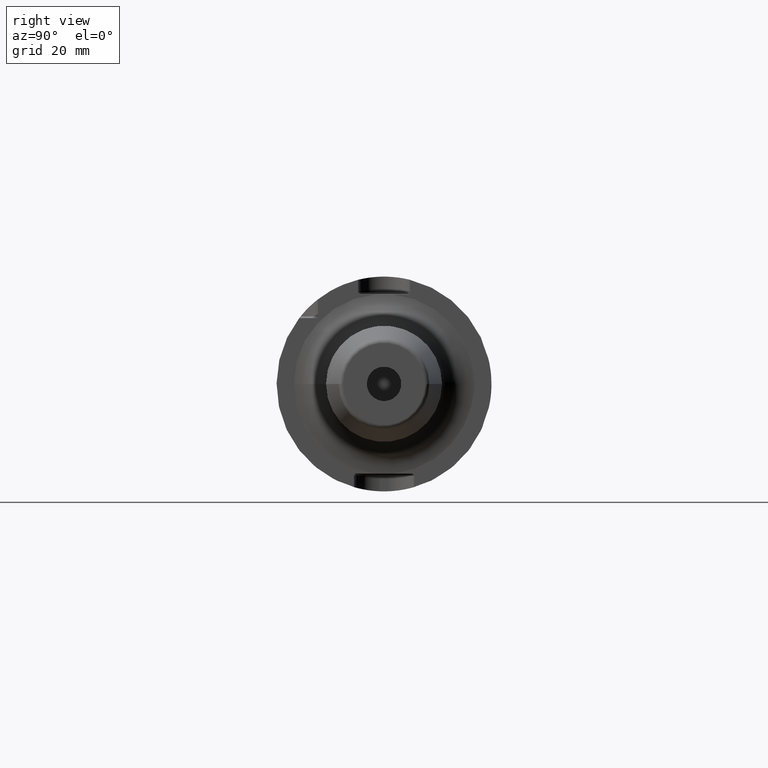
[diagram: clean part render]
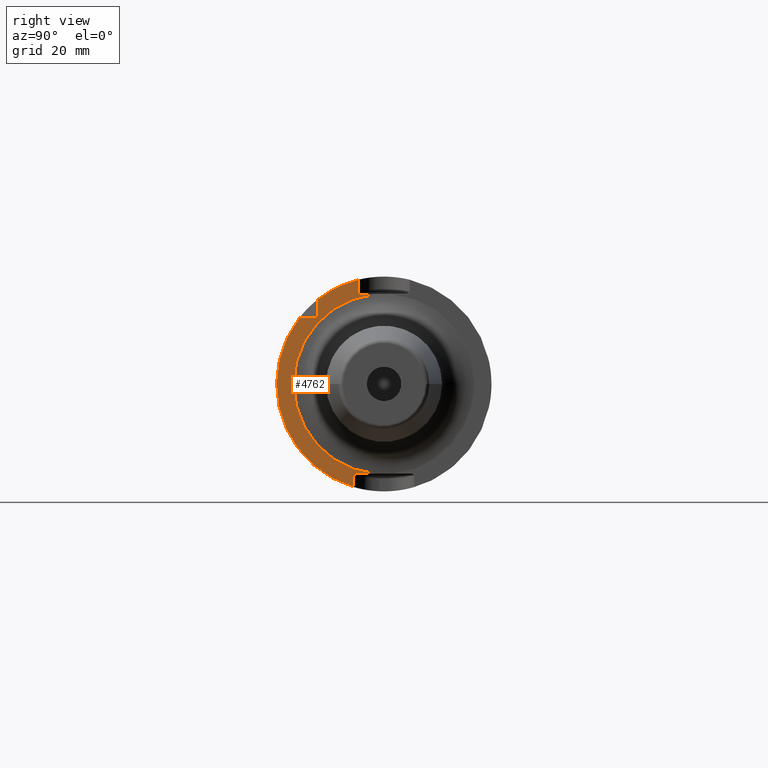
[diagram: same view with one face highlighted and labeled with its STEP entity id]
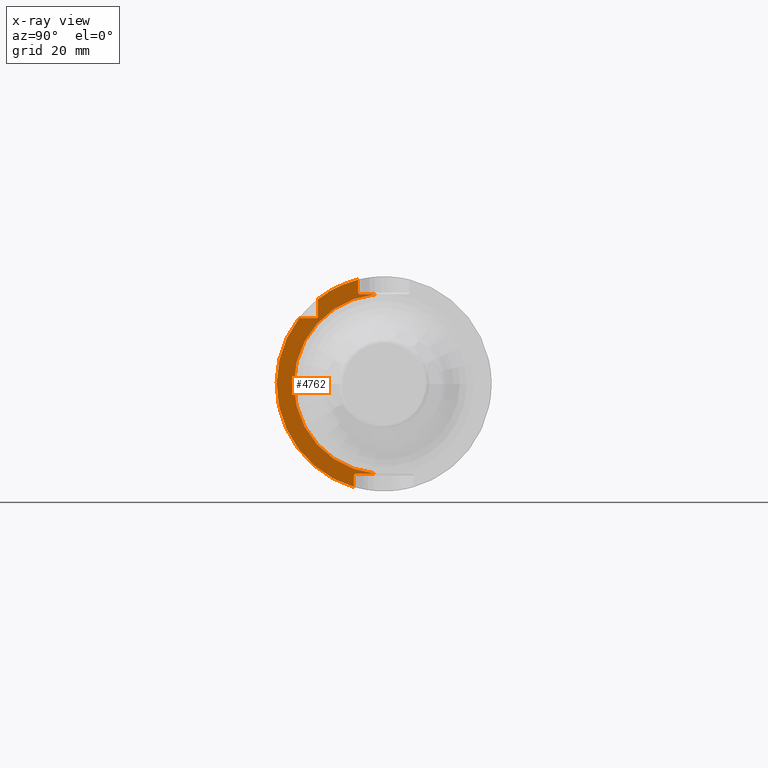
[diagram: x-ray of the same camera — body ghosted, the highlighted face saturated]
A machine part, right view. The second image highlights one B-rep face of the part: STEP entity #4762.
The next image is the same camera in x-ray: the body ghosted, the highlighted face saturated — about 0% of this face is hidden behind the body in this view.
In plain terms, the highlighted planar face has unit normal (1, 0, 0).
Its self-contained STEP definition (entity closure, byte-faithful):
#1010=CARTESIAN_POINT('',(2.595E1,0.E0,0.E0));
#1011=DIRECTION('',(1.E0,0.E0,0.E0));
#1012=DIRECTION('',(0.E0,-2.407E-1,9.705995621264E-1));
#1013=AXIS2_PLACEMENT_3D('',#1010,#1011,#1012);
#1019=CARTESIAN_POINT('',(2.595E1,0.E0,0.E0));
#1020=DIRECTION('',(1.E0,0.E0,0.E0));
#1021=DIRECTION('',(0.E0,-7.893060243024E-1,6.14E-1));
#1022=AXIS2_PLACEMENT_3D('',#1019,#1020,#1021);
#1401=CARTESIAN_POINT('',(2.595E1,0.E0,0.E0));
#1402=DIRECTION('',(1.E0,0.E0,0.E0));
#1403=DIRECTION('',(0.E0,-1.E0,0.E0));
#1404=AXIS2_PLACEMENT_3D('',#1401,#1402,#1403);
#1406=DIRECTION('',(0.E0,-9.999999999998E-1,-5.585500970887E-7));
#1407=VECTOR('',#1406,4.570533321328E0);
#1408=CARTESIAN_POINT('',(2.595E1,-2.046966678673E0,-2.089999744713E1));
#1409=LINE('',#1408,#1407);
#1410=DIRECTION('',(0.E0,0.E0,1.E0));
#1411=VECTOR('',#1410,2.694888908891E0);
#1412=CARTESIAN_POINT('',(2.595E1,-7.0175E0,-2.399488890889E1));
#1413=LINE('',#1412,#1411);
#1414=DIRECTION('',(0.E0,1.E0,0.E0));
#1415=VECTOR('',#1414,3.982650607559E0);
#1416=CARTESIAN_POINT('',(2.595E1,-1.973265060756E1,1.535E1));
#1417=LINE('',#1416,#1415);
#1418=DIRECTION('',(0.E0,0.E0,-1.E0));
#1419=VECTOR('',#1418,3.982650607559E0);
#1420=CARTESIAN_POINT('',(2.595E1,-1.535E1,1.973265060756E1));
#1421=LINE('',#1420,#1419);
#1422=DIRECTION('',(0.E0,0.E0,-1.E0));
#1423=VECTOR('',#1422,2.964989053161E0);
#1424=CARTESIAN_POINT('',(2.595E1,-6.0175E0,2.426498905316E1));
#1425=LINE('',#1424,#1423);
#1426=DIRECTION('',(0.E0,9.999999999999E-1,-4.912936471184E-7));
#1427=VECTOR('',#1426,3.570536556123E0);
#1428=CARTESIAN_POINT('',(2.595E1,-5.6175E0,2.09E1));
#1429=LINE('',#1428,#1427);
#1430=CARTESIAN_POINT('',(2.595E1,0.E0,0.E0));
#1431=DIRECTION('',(1.E0,0.E0,0.E0));
#1432=DIRECTION('',(0.E0,-9.747327615918E-2,9.952381425743E-1));
#1433=AXIS2_PLACEMENT_3D('',#1430,#1431,#1432);
#1638=DIRECTION('',(0.E0,-7.071067811865E-1,7.071067811865E-1));
#1639=VECTOR('',#1638,5.656854249492E-1);
#1640=CARTESIAN_POINT('',(2.595E1,-5.6175E0,2.09E1));
#1641=LINE('',#1640,#1639);
#1767=DIRECTION('',(0.E0,7.071067811866E-1,7.071067811865E-1));
#1768=VECTOR('',#1767,5.656854249492E-1);
#1769=CARTESIAN_POINT('',(2.595E1,-7.0175E0,-2.13E1));
#1770=LINE('',#1769,#1768);
#2031=DIRECTION('',(0.E0,-7.071067811865E-1,-7.071067811865E-1));
#2032=VECTOR('',#2031,5.656854249492E-1);
#2033=CARTESIAN_POINT('',(2.595E1,-1.535E1,1.575E1));
#2034=LINE('',#2033,#2032);
#3073=CARTESIAN_POINT('',(2.595E1,-5.6175E0,2.09E1));
#3074=CARTESIAN_POINT('',(2.595E1,-6.0175E0,2.13E1));
#3075=VERTEX_POINT('',#3073);
#3076=VERTEX_POINT('',#3074);
#3109=CARTESIAN_POINT('',(2.595E1,-7.0175E0,-2.13E1));
#3110=CARTESIAN_POINT('',(2.595E1,-6.6175E0,-2.09E1));
#3111=VERTEX_POINT('',#3109);
#3112=VERTEX_POINT('',#3110);
#3123=CARTESIAN_POINT('',(2.595E1,-1.535E1,1.575E1));
#3124=CARTESIAN_POINT('',(2.595E1,-1.575E1,1.535E1));
#3125=VERTEX_POINT('',#3123);
#3126=VERTEX_POINT('',#3124);
#3151=CARTESIAN_POINT('',(2.595E1,-1.973265060756E1,1.535E1));
#3152=VERTEX_POINT('',#3151);
#3153=CARTESIAN_POINT('',(2.595E1,-1.535E1,1.973265060756E1));
#3154=VERTEX_POINT('',#3153);
#3193=CARTESIAN_POINT('',(2.595E1,-7.0175E0,-2.399488890889E1));
#3194=VERTEX_POINT('',#3193);
#3195=CARTESIAN_POINT('',(2.595E1,-6.0175E0,2.426498905316E1));
#3196=VERTEX_POINT('',#3195);
#3275=CARTESIAN_POINT('',(2.595E1,-2.1E1,0.E0));
#3276=CARTESIAN_POINT('',(2.595E1,-2.046924180121E0,-2.090000242586E1));
#3277=VERTEX_POINT('',#3275);
#3278=VERTEX_POINT('',#3276);
#3279=CARTESIAN_POINT('',(2.595E1,-2.046938799343E0,2.090000099406E1));
#3280=VERTEX_POINT('',#3279);
#4734=CARTESIAN_POINT('',(2.595E1,0.E0,0.E0));
#4735=DIRECTION('',(1.E0,0.E0,0.E0));
#4736=DIRECTION('',(0.E0,-1.E0,0.E0));
#4737=AXIS2_PLACEMENT_3D('',#4734,#4735,#4736);
#4738=PLANE('',#4737);
#4739=ORIENTED_EDGE('',*,*,#4696,.T.);
#4740=ORIENTED_EDGE('',*,*,#4685,.T.);
#4742=ORIENTED_EDGE('',*,*,#4741,.F.);
#4744=ORIENTED_EDGE('',*,*,#4743,.F.);
#4745=ORIENTED_EDGE('',*,*,#4340,.F.);
#4747=ORIENTED_EDGE('',*,*,#4746,.T.);
#4749=ORIENTED_EDGE('',*,*,#4748,.F.);
#4751=ORIENTED_EDGE('',*,*,#4750,.F.);
#4752=ORIENTED_EDGE('',*,*,#4328,.F.);
#4753=ORIENTED_EDGE('',*,*,#4517,.T.);
#4755=ORIENTED_EDGE('',*,*,#4754,.F.);
#4757=ORIENTED_EDGE('',*,*,#4756,.T.);
#4759=ORIENTED_EDGE('',*,*,#4758,.T.);
#4760=EDGE_LOOP('',(#4739,#4740,#4742,#4744,#4745,#4747,#4749,#4751,#4752,#4753,
#4755,#4757,#4759));
#4761=FACE_OUTER_BOUND('',#4760,.F.);
#4762=ADVANCED_FACE('',(#4761),#4738,.T.);
#1014=CIRCLE('',#1013,2.5E1);
#1023=CIRCLE('',#1022,2.5E1);
#1405=CIRCLE('',#1404,2.1E1);
#1434=CIRCLE('',#1433,2.1E1);
#4328=EDGE_CURVE('',#3196,#3154,#1014,.T.);
#4340=EDGE_CURVE('',#3152,#3194,#1023,.T.);
#4517=EDGE_CURVE('',#3196,#3076,#1425,.T.);
#4685=EDGE_CURVE('',#3278,#3112,#1409,.T.);
#4696=EDGE_CURVE('',#3277,#3278,#1405,.T.);
#4741=EDGE_CURVE('',#3111,#3112,#1770,.T.);
#4743=EDGE_CURVE('',#3194,#3111,#1413,.T.);
#4746=EDGE_CURVE('',#3152,#3126,#1417,.T.);
#4748=EDGE_CURVE('',#3125,#3126,#2034,.T.);
#4750=EDGE_CURVE('',#3154,#3125,#1421,.T.);
#4754=EDGE_CURVE('',#3075,#3076,#1641,.T.);
#4756=EDGE_CURVE('',#3075,#3280,#1429,.T.);
#4758=EDGE_CURVE('',#3280,#3277,#1434,.T.);